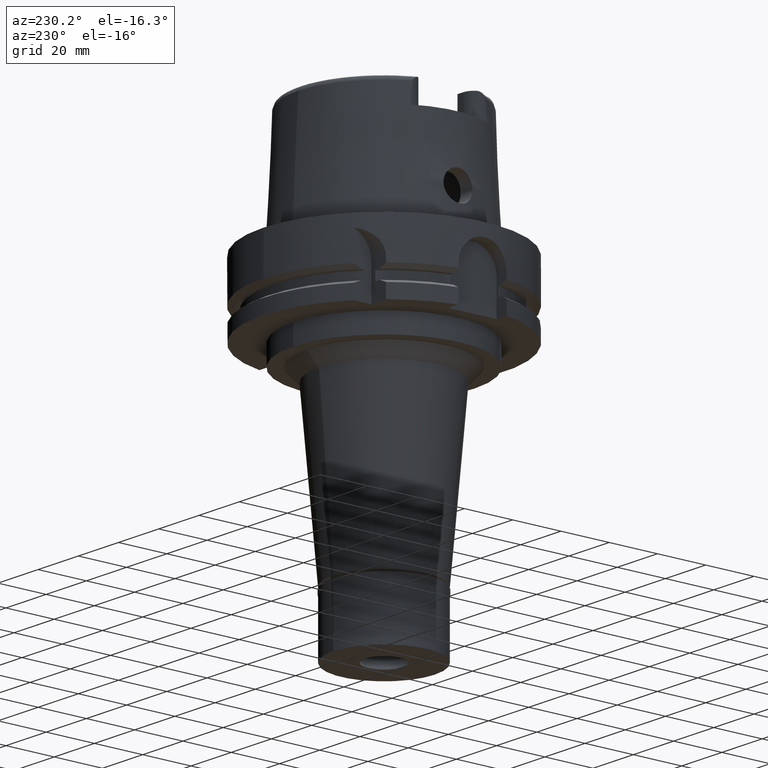
[diagram: clean part render]
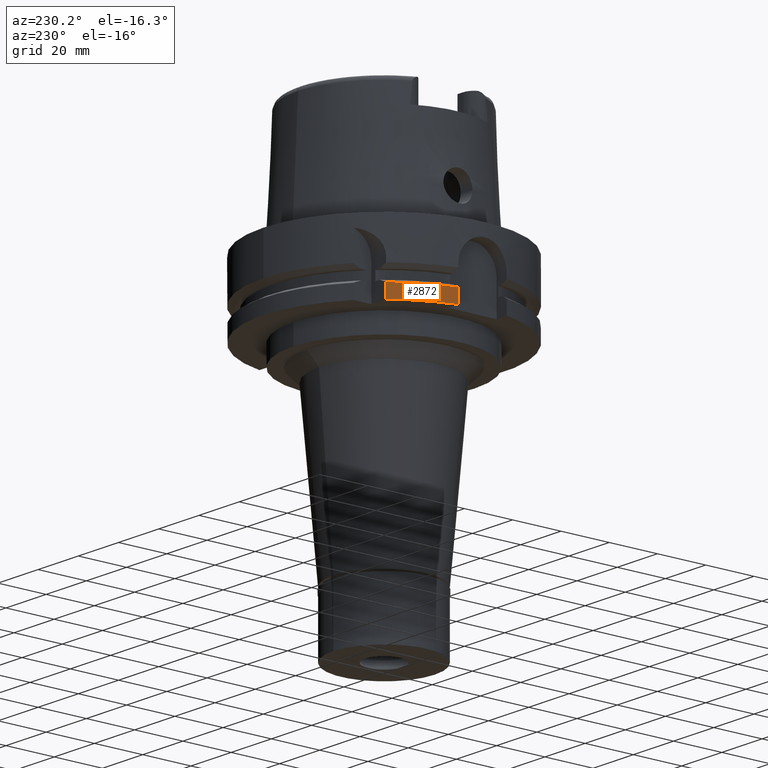
[diagram: same view with one face highlighted and labeled with its STEP entity id]
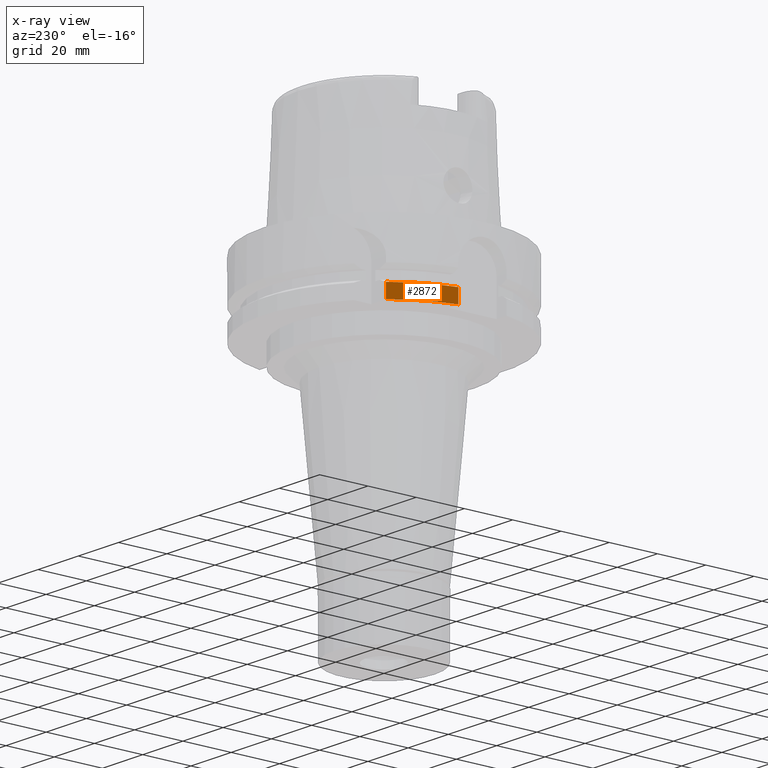
[diagram: x-ray of the same camera — body ghosted, the highlighted face saturated]
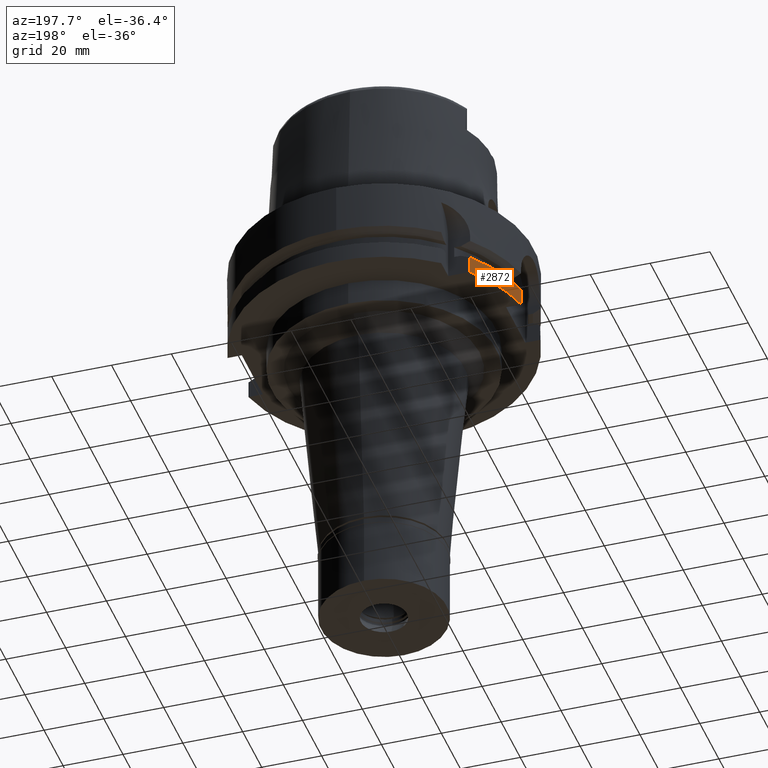
[diagram: same view with one face highlighted and labeled with its STEP entity id]
A machine part, auxiliary view. The second image highlights one B-rep face of the part: STEP entity #2872.
The next image is the same camera in x-ray: the body ghosted, the highlighted face saturated — about 0% of this face is hidden behind the body in this view.
A second angle (auxiliary view) of the same face is appended — the face is thin or edge-on in the first view.
In plain terms, the highlighted cylindrical surface (partial cylindrical patch) has radius 50 mm, axis along (0, 0, 1).
Its self-contained STEP definition (entity closure, byte-faithful):
#163 = DIRECTION ( 'NONE',  ( 0.0000000000000000000, 1.000000000000000000, 0.0000000000000000000 ) ) ;
#306 = AXIS2_PLACEMENT_3D ( 'NONE', #2255, #543, #5314 ) ;
#459 = DIRECTION ( 'NONE',  ( -1.164835666499979694E-07, -1.435883620958975412E-07, 0.9999999999999827915 ) ) ;
#543 = DIRECTION ( 'NONE',  ( 0.0000000000000000000, 0.0000000000000000000, -1.000000000000000000 ) ) ;
#555 = DIRECTION ( 'NONE',  ( -0.7765951326141738997, 0.6299999999999789102, 0.0000000000000000000 ) ) ;
#783 = VERTEX_POINT ( 'NONE', #1886 ) ;
#1016 = CARTESIAN_POINT ( 'NONE',  ( -48.98979485565999425, 10.00000000000000000, -23.24759526419000011 ) ) ;
#1049 = AXIS2_PLACEMENT_3D ( 'NONE', #2688, #5298, #555 ) ;
#1271 = CARTESIAN_POINT ( 'NONE',  ( -38.82975663071000128, 31.50000000000000000, -29.00000000000000000 ) ) ;
#1365 = CARTESIAN_POINT ( 'NONE',  ( 0.0000000000000000000, 0.0000000000000000000, -136.3750000000000000 ) ) ;
#1711 = VERTEX_POINT ( 'NONE', #1016 ) ;
#1886 = CARTESIAN_POINT ( 'NONE',  ( -48.98979485565999425, 10.00000000000000000, -29.00000000000000000 ) ) ;
#1889 = EDGE_LOOP ( 'NONE', ( #3648, #3481, #2232, #2866 ) ) ;
#2232 = ORIENTED_EDGE ( 'NONE', *, *, #5472, .T. ) ;
#2255 = CARTESIAN_POINT ( 'NONE',  ( 0.0000000000000000000, 0.0000000000000000000, -23.24759526419000011 ) ) ;
#2565 = AXIS2_PLACEMENT_3D ( 'NONE', #1365, #4471, #163 ) ;
#2666 = CARTESIAN_POINT ( 'NONE',  ( -38.82975730076999810, 31.49999917402000094, -23.24759226099000031 ) ) ;
#2688 = CARTESIAN_POINT ( 'NONE',  ( 0.0000000000000000000, 0.0000000000000000000, -29.00000000000000000 ) ) ;
#2708 = CIRCLE ( 'NONE', #306, 49.99999999999997868 ) ;
#2716 = VECTOR ( 'NONE', #4344, 1000.000000000000000 ) ;
#2866 = ORIENTED_EDGE ( 'NONE', *, *, #4347, .F. ) ;
#2872 = ADVANCED_FACE ( 'NONE', ( #3538 ), #3569, .T. ) ;
#3018 = LINE ( 'NONE', #1271, #3812 ) ;
#3298 = CIRCLE ( 'NONE', #1049, 50.00000000000000711 ) ;
#3405 = VERTEX_POINT ( 'NONE', #2666 ) ;
#3443 = EDGE_CURVE ( 'NONE', #5231, #783, #3298, .T. ) ;
#3481 = ORIENTED_EDGE ( 'NONE', *, *, #4981, .F. ) ;
#3538 = FACE_OUTER_BOUND ( 'NONE', #1889, .T. ) ;
#3569 = CYLINDRICAL_SURFACE ( 'NONE', #2565, 50.00000000000000000 ) ;
#3648 = ORIENTED_EDGE ( 'NONE', *, *, #3443, .T. ) ;
#3812 = VECTOR ( 'NONE', #459, 1000.000000000000227 ) ;
#4319 = CARTESIAN_POINT ( 'NONE',  ( -48.98979485565999425, 10.00000000000000000, -23.24759526419000011 ) ) ;
#4344 = DIRECTION ( 'NONE',  ( -8.399427413532000465E-14, 0.0000000000000000000, -1.000000000000000000 ) ) ;
#4347 = EDGE_CURVE ( 'NONE', #5231, #3405, #3018, .T. ) ;
#4471 = DIRECTION ( 'NONE',  ( 0.0000000000000000000, 0.0000000000000000000, 1.000000000000000000 ) ) ;
#4806 = LINE ( 'NONE', #4319, #2716 ) ;
#4981 = EDGE_CURVE ( 'NONE', #1711, #783, #4806, .T. ) ;
#5115 = CARTESIAN_POINT ( 'NONE',  ( -38.82975663071000128, 31.50000000000000000, -29.00000000000000000 ) ) ;
#5231 = VERTEX_POINT ( 'NONE', #5115 ) ;
#5298 = DIRECTION ( 'NONE',  ( 0.0000000000000000000, 0.0000000000000000000, 1.000000000000000000 ) ) ;
#5314 = DIRECTION ( 'NONE',  ( -0.9797958971132723072, 0.1999999999999946265, 0.0000000000000000000 ) ) ;
#5472 = EDGE_CURVE ( 'NONE', #1711, #3405, #2708, .T. ) ;